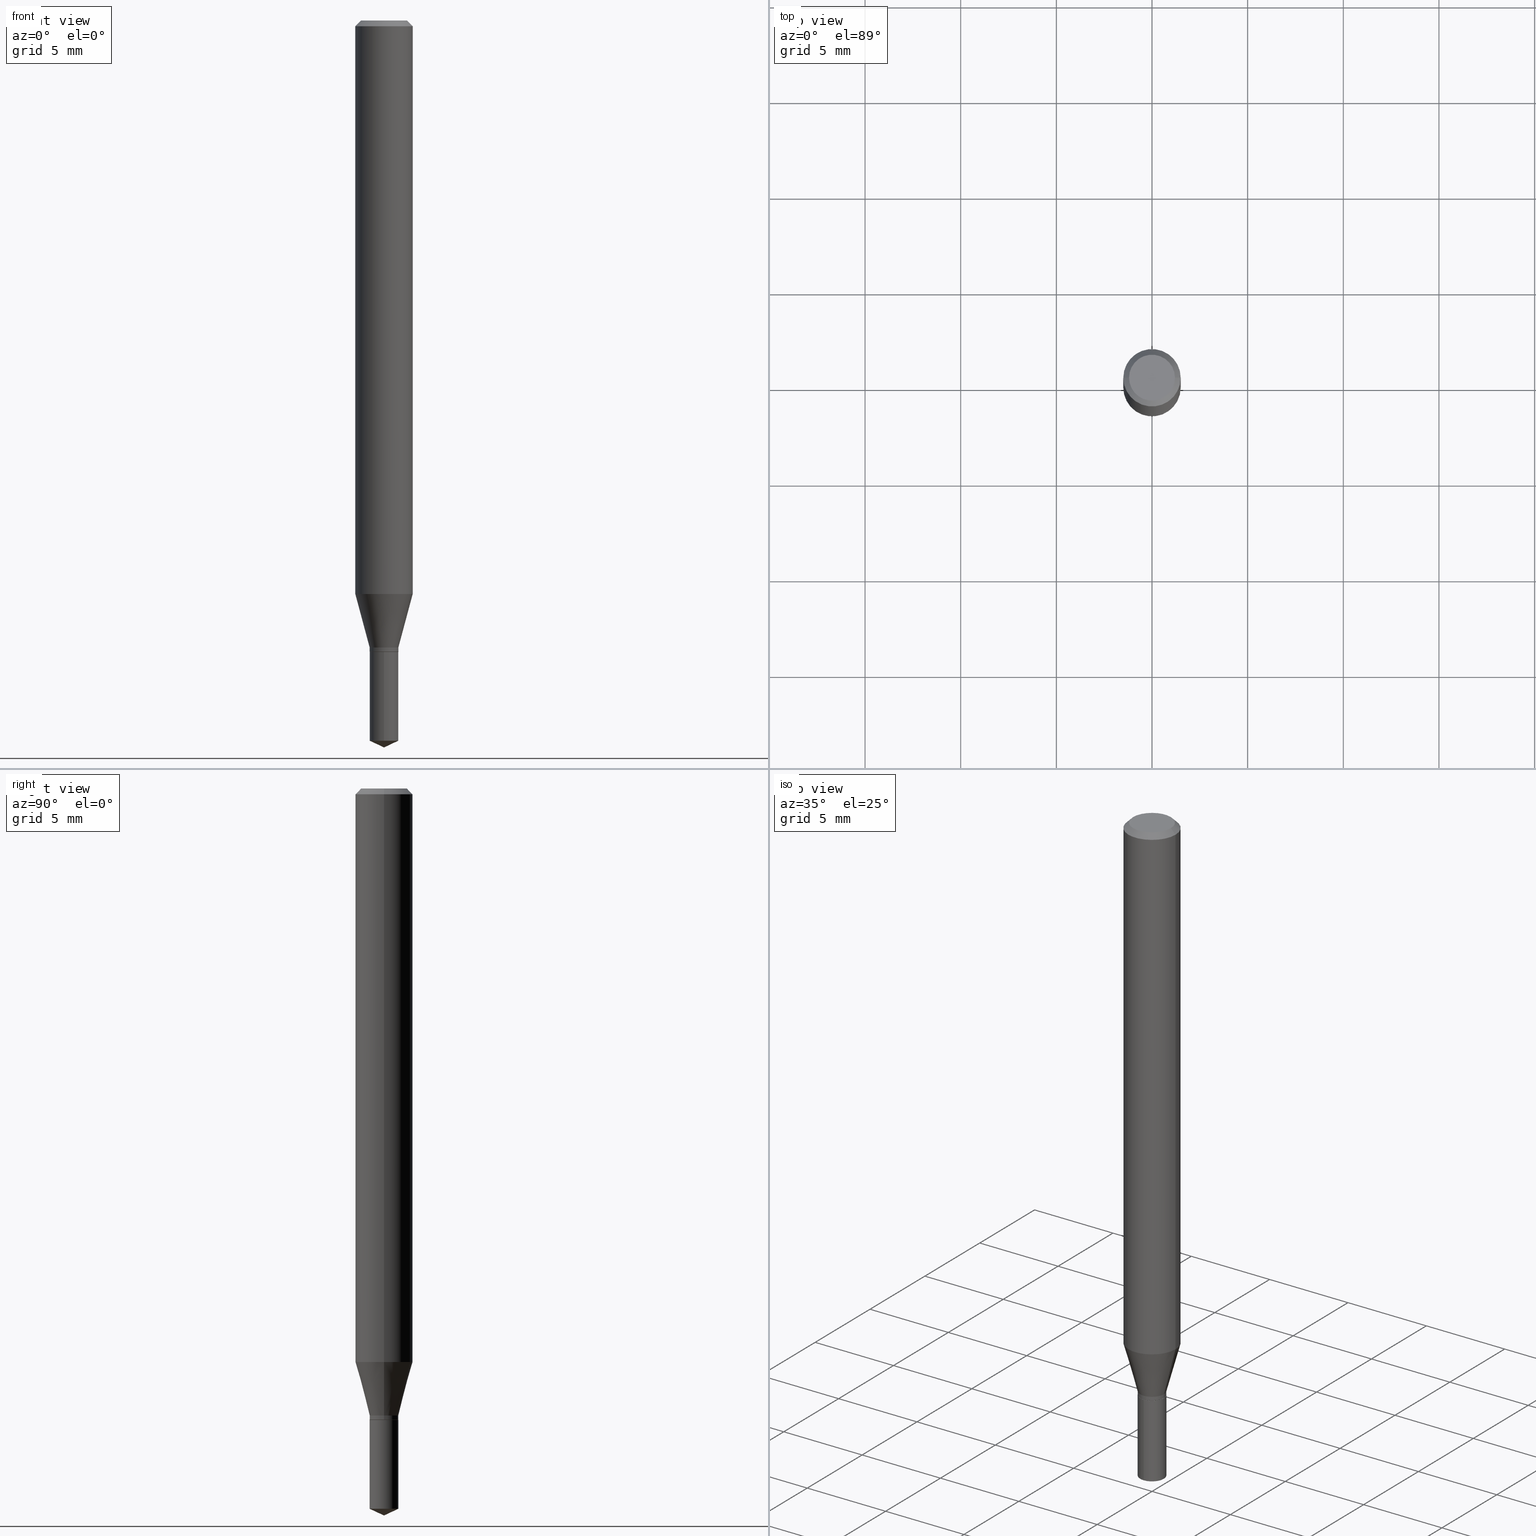
[diagram: canonical four-view strip — front | top / right | iso, engineering-drawing reading convention]
A machine part, canonical four-view strip (front | top / right | iso — engineering-drawing reading convention). The complete STEP part file that produces these views, byte-faithful:
ISO-10303-21;
HEADER;
FILE_DESCRIPTION (( 'STEP AP203' ),
    '1' );
FILE_NAME ('07061.STEP',
    '2024-04-23T19:29:27',
    ( '' ),
    ( '' ),
    'SwSTEP 2.0',
    'SolidWorks 2023',
    '' );
FILE_SCHEMA (( 'CONFIG_CONTROL_DESIGN' ));
ENDSEC;

DATA;
#1 = PLANE ( 'NONE',  #448 ) ;
#2 = EDGE_LOOP ( 'NONE', ( #396, #213, #97, #295 ) ) ;
#3 = PRODUCT_DEFINITION ( 'UNKNOWN', '', #259, #34 ) ;
#4 = CIRCLE ( 'NONE', #207, 0.02904999999999999943 ) ;
#5 = DIRECTION ( 'NONE',  ( -6.982962677686265922E-15, -1.000000000000000000, 0.000000000000000000 ) ) ;
#6 = ORIENTED_EDGE ( 'NONE', *, *, #206, .F. ) ;
#7 = CARTESIAN_POINT ( 'NONE',  ( 2.099653784171458177E-16, 0.02954999999999482346, -1.482320608701519937 ) ) ;
#8 = EDGE_CURVE ( 'NONE', #100, #326, #79, .T. ) ;
#9 = DIRECTION ( 'NONE',  ( -2.445468806185136597E-29, 3.491481338843145583E-15, 1.000000000000000000 ) ) ;
#10 = CARTESIAN_POINT ( 'NONE',  ( 3.177153072995728197E-29, -4.536132555425013945E-15, -1.299199999999999688 ) ) ;
#11 = VECTOR ( 'NONE', #134, 39.37007874015748854 ) ;
#12 = PRODUCT_RELATED_PRODUCT_CATEGORY ( 'detail', '', ( #38 ) ) ;
#13 = CIRCLE ( 'NONE', #93, 0.05905000000000014404 ) ;
#14 = CARTESIAN_POINT ( 'NONE',  ( -0.05905000000000006771, 4.195754854663396409E-16, -2.904631170795525045E-30 ) ) ;
#15 = CARTESIAN_POINT ( 'NONE',  ( 3.177153072995728757E-29, -4.536132555425014733E-15, -1.299199999999999910 ) ) ;
#16 = CARTESIAN_POINT ( 'NONE',  ( -0.05905000000000014404, -3.701086506410853465E-15, -1.180204501176717713 ) ) ;
#17 = DIRECTION ( 'NONE',  ( 1.000000000000000000, -6.982962677686265922E-15, 4.876176775795935793E-29 ) ) ;
#18 = ORIENTED_EDGE ( 'NONE', *, *, #254, .F. ) ;
#19 = CYLINDRICAL_SURFACE ( 'NONE', #335, 0.02954999999999999641 ) ;
#20 = VECTOR ( 'NONE', #342, 39.37007874015747433 ) ;
#21 = CIRCLE ( 'NONE', #309, 0.02954999999999999988 ) ;
#22 = DIRECTION ( 'NONE',  ( -2.445468806185136877E-29, 3.491481338843145188E-15, 1.000000000000000000 ) ) ;
#23 = ORIENTED_EDGE ( 'NONE', *, *, #225, .F. ) ;
#24 = DIRECTION ( 'NONE',  ( 1.000000000000000000, -6.982962677686265922E-15, 0.000000000000000000 ) ) ;
#25 = LINE ( 'NONE', #201, #11 ) ;
#26 = EDGE_LOOP ( 'NONE', ( #489, #174, #343 ) ) ;
#27 =( NAMED_UNIT ( * ) PLANE_ANGLE_UNIT ( ) SI_UNIT ( $, .RADIAN. ) );
#28 = ADVANCED_FACE ( 'NONE', ( #88 ), #333, .T. ) ;
#29 = EDGE_LOOP ( 'NONE', ( #222, #379, #58, #161 ) ) ;
#30 = COORDINATED_UNIVERSAL_TIME_OFFSET ( 5, 0, .BEHIND. ) ;
#31 = COORDINATED_UNIVERSAL_TIME_OFFSET ( 5, 0, .BEHIND. ) ;
#32 = PERSON_AND_ORGANIZATION_ROLE ( 'design_owner' ) ;
#33 = CC_DESIGN_PERSON_AND_ORGANIZATION_ASSIGNMENT ( #257, #488, ( #259 ) ) ;
#34 = DESIGN_CONTEXT ( 'detailed design', #120, 'design' ) ;
#35 = APPROVAL_DATE_TIME ( #75, #409 ) ;
#36 = DATE_AND_TIME ( #156, #52 ) ;
#37 = ORIENTED_EDGE ( 'NONE', *, *, #182, .F. ) ;
#38 = PRODUCT ( '07061', '07061', '', ( #439 ) ) ;
#39 = ADVANCED_FACE ( 'NONE', ( #459 ), #49, .T. ) ;
#40 = CARTESIAN_POINT ( 'NONE',  ( -0.05904999999999999832, 3.711095515056362547E-16, -0.01181000000000007218 ) ) ;
#41 = CARTESIAN_POINT ( 'NONE',  ( 0.02954999999999998253, -4.740733361881222840E-15, -1.298699999999999966 ) ) ;
#42 = DIRECTION ( 'NONE',  ( 2.438088387897960049E-29, -3.491481338843145188E-15, -1.000000000000000000 ) ) ;
#43 = LINE ( 'NONE', #191, #327 ) ;
#44 = AXIS2_PLACEMENT_3D ( 'NONE', #133, #358, #203 ) ;
#45 = CARTESIAN_POINT ( 'NONE',  ( 3.155388400620681599E-29, -4.505058371509310392E-15, -1.290300000000000002 ) ) ;
#46 = DIRECTION ( 'NONE',  ( -2.456664372604500601E-29, 3.475448650518548198E-15, 1.000000000000000000 ) ) ;
#47 = APPROVAL ( #143, 'UNSPECIFIED' ) ;
#48 = FACE_OUTER_BOUND ( 'NONE', #419, .T. ) ;
#49 = CYLINDRICAL_SURFACE ( 'NONE', #92, 0.05905000000000006771 ) ;
#50 = DIRECTION ( 'NONE',  ( 6.982962677686265922E-15, 1.000000000000000000, -3.475448650518548198E-15 ) ) ;
#51 = VERTEX_POINT ( 'NONE', #41 ) ;
#52 = LOCAL_TIME ( 15, 29, 27.00000000000000000, #366 ) ;
#53 = DIRECTION ( 'NONE',  ( -6.982962677686267499E-15, -1.000000000000000000, 3.520397390770424288E-15 ) ) ;
#54 = ORIENTED_EDGE ( 'NONE', *, *, #263, .F. ) ;
#55 = DIRECTION ( 'NONE',  ( -2.445468806185136597E-29, 3.491481338843145583E-15, 1.000000000000000000 ) ) ;
#56 = ADVANCED_FACE ( 'NONE', ( #226 ), #224, .T. ) ;
#57 = CARTESIAN_POINT ( 'NONE',  ( 3.177153072995728197E-29, -4.536132555425013945E-15, -1.299199999999999688 ) ) ;
#58 = ORIENTED_EDGE ( 'NONE', *, *, #103, .T. ) ;
#59 = DIRECTION ( 'NONE',  ( -6.328713451373382789E-15, -0.9063077870366504918, 0.4226182617406981090 ) ) ;
#60 = CARTESIAN_POINT ( 'NONE',  ( -0.02954999999999998253, -4.309757214715342453E-15, -1.298699999999999966 ) ) ;
#61 = ORIENTED_EDGE ( 'NONE', *, *, #293, .F. ) ;
#62 =( LENGTH_UNIT ( ) NAMED_UNIT ( * ) SI_UNIT ( $, .METRE. ) );
#63 = AXIS2_PLACEMENT_3D ( 'NONE', #312, #139, #467 ) ;
#64 = DIRECTION ( 'NONE',  ( -2.445468806185136597E-29, 3.491481338843145583E-15, 1.000000000000000000 ) ) ;
#65 = EDGE_CURVE ( 'NONE', #51, #114, #43, .T. ) ;
#66 = PERSON_AND_ORGANIZATION ( #199, #124 ) ;
#67 = DIRECTION ( 'NONE',  ( -2.456664372604500881E-29, 3.475448650518548198E-15, 1.000000000000000000 ) ) ;
#68 = EDGE_LOOP ( 'NONE', ( #305, #423, #432 ) ) ;
#69 = PERSON_AND_ORGANIZATION ( #199, #124 ) ;
#70 = VECTOR ( 'NONE', #283, 39.37007874015748854 ) ;
#71 = VECTOR ( 'NONE', #397, 39.37007874015748143 ) ;
#72 = CALENDAR_DATE ( 2024, 23, 4 ) ;
#73 = EDGE_CURVE ( 'NONE', #266, #270, #4, .T. ) ;
#74 = EDGE_LOOP ( 'NONE', ( #264, #261, #300, #54 ) ) ;
#75 = DATE_AND_TIME ( #443, #416 ) ;
#76 = CARTESIAN_POINT ( 'NONE',  ( -0.02904999999999999943, -4.327070663512594284E-15, -1.299199999999999688 ) ) ;
#77 = CIRCLE ( 'NONE', #275, 0.04724000000000000421 ) ;
#78 = ADVANCED_FACE ( 'NONE', ( #83 ), #229, .T. ) ;
#79 = LINE ( 'NONE', #231, #487 ) ;
#80 = PLANE ( 'NONE',  #350 ) ;
#81 = DIRECTION ( 'NONE',  ( -2.445468806185136877E-29, 3.491481338843145188E-15, 1.000000000000000000 ) ) ;
#82 = EDGE_CURVE ( 'NONE', #266, #170, #344, .T. ) ;
#83 = FACE_OUTER_BOUND ( 'NONE', #2, .T. ) ;
#84 = CIRCLE ( 'NONE', #107, 0.02904999999999999943 ) ;
#85 = CARTESIAN_POINT ( 'NONE',  ( 2.886153292546952505E-29, -4.120661991877192958E-15, -1.180204501176717713 ) ) ;
#86 = VERTEX_POINT ( 'NONE', #7 ) ;
#87 = FACE_OUTER_BOUND ( 'NONE', #380, .T. ) ;
#88 = FACE_OUTER_BOUND ( 'NONE', #29, .T. ) ;
#89 = DIRECTION ( 'NONE',  ( -2.445468806185136597E-29, 3.491481338843145583E-15, 1.000000000000000000 ) ) ;
#90 = LINE ( 'NONE', #402, #106 ) ;
#91 = DIMENSIONAL_EXPONENTS ( 1.000000000000000000, 0.000000000000000000, 0.000000000000000000, 0.000000000000000000, 0.000000000000000000, 0.000000000000000000, 0.000000000000000000 ) ;
#92 = AXIS2_PLACEMENT_3D ( 'NONE', #157, #303, #298 ) ;
#93 = AXIS2_PLACEMENT_3D ( 'NONE', #297, #269, #452 ) ;
#94 = DIRECTION ( 'NONE',  ( 1.000000000000000000, -6.982962677686265922E-15, 0.000000000000000000 ) ) ;
#95 = CARTESIAN_POINT ( 'NONE',  ( 2.888098660104664204E-31, -4.123439461173780263E-17, -0.01181000000000007218 ) ) ;
#96 = APPLICATION_CONTEXT ( 'configuration controlled 3d designs of mechanical parts and assemblies' ) ;
#97 = ORIENTED_EDGE ( 'NONE', *, *, #337, .F. ) ;
#98 = DIRECTION ( 'NONE',  ( -2.445468806185136597E-29, 3.491481338843145583E-15, 1.000000000000000000 ) ) ;
#99 = CARTESIAN_POINT ( 'NONE',  ( 0.000000000000000000, 0.000000000000000000, 0.000000000000000000 ) ) ;
#100 = VERTEX_POINT ( 'NONE', #159 ) ;
#101 = CARTESIAN_POINT ( 'NONE',  ( 3.155388400620681599E-29, -4.505058371509310392E-15, -1.290300000000000002 ) ) ;
#102 = DIRECTION ( 'NONE',  ( -2.456664372604500601E-29, 3.475448650518548198E-15, 1.000000000000000000 ) ) ;
#103 = EDGE_CURVE ( 'NONE', #326, #238, #307, .T. ) ;
#104 = EDGE_LOOP ( 'NONE', ( #367, #473, #425, #186 ) ) ;
#105 = PERSON_AND_ORGANIZATION ( #199, #124 ) ;
#106 = VECTOR ( 'NONE', #349, 39.37007874015748143 ) ;
#107 = AXIS2_PLACEMENT_3D ( 'NONE', #165, #475, #363 ) ;
#108 = CARTESIAN_POINT ( 'NONE',  ( 2.099653784171458424E-16, 0.02954999999999545837, -1.299199999999999910 ) ) ;
#109 = ORIENTED_EDGE ( 'NONE', *, *, #426, .T. ) ;
#110 = LENGTH_MEASURE_WITH_UNIT ( LENGTH_MEASURE( 0.02539999999999999897 ), #62 );
#111 = DATE_TIME_ROLE ( 'creation_date' ) ;
#112 = ADVANCED_FACE ( 'NONE', ( #128 ), #461, .T. ) ;
#113 = CIRCLE ( 'NONE', #171, 0.05905000000000014404 ) ;
#114 = VERTEX_POINT ( 'NONE', #272 ) ;
#115 = EDGE_CURVE ( 'NONE', #412, #86, #25, .T. ) ;
#116 = ORIENTED_EDGE ( 'NONE', *, *, #8, .F. ) ;
#117 = AXIS2_PLACEMENT_3D ( 'NONE', #435, #240, #394 ) ;
#118 = DIRECTION ( 'NONE',  ( -2.445468806185136597E-29, 3.491481338843145583E-15, 1.000000000000000000 ) ) ;
#119 = CARTESIAN_POINT ( 'NONE',  ( 0.000000000000000000, 0.000000000000000000, 0.000000000000000000 ) ) ;
#120 = APPLICATION_CONTEXT ( 'configuration controlled 3d designs of mechanical parts and assemblies' ) ;
#121 = DIRECTION ( 'NONE',  ( -2.445468806185136877E-29, 3.491481338843145188E-15, 1.000000000000000000 ) ) ;
#122 = CC_DESIGN_DATE_AND_TIME_ASSIGNMENT ( #329, #111, ( #3 ) ) ;
#123 = CARTESIAN_POINT ( 'NONE',  ( -0.02904999999999999943, -4.329719890686704697E-15, -1.299199999999999688 ) ) ;
#124 = ORGANIZATION ( 'UNSPECIFIED', 'UNSPECIFIED', '' ) ;
#125 = LINE ( 'NONE', #40, #132 ) ;
#126 = ORIENTED_EDGE ( 'NONE', *, *, #82, .T. ) ;
#127 = CARTESIAN_POINT ( 'NONE',  ( 2.099653784171413311E-16, 0.02954999999999545837, -1.299199999999999910 ) ) ;
#128 = FACE_OUTER_BOUND ( 'NONE', #276, .T. ) ;
#129 = EDGE_CURVE ( 'NONE', #238, #326, #470, .T. ) ;
#130 = DIRECTION ( 'NONE',  ( 1.000000000000000000, -6.982962677686277755E-15, 0.000000000000000000 ) ) ;
#131 = VECTOR ( 'NONE', #67, 39.37007874015748143 ) ;
#132 = VECTOR ( 'NONE', #376, 39.37007874015748143 ) ;
#133 = CARTESIAN_POINT ( 'NONE',  ( 3.155388400620681599E-29, -4.505058371509310392E-15, -1.290300000000000002 ) ) ;
#134 = DIRECTION ( 'NONE',  ( 6.439704144417038242E-15, 0.9063077870366533784, 0.4226182617406917807 ) ) ;
#135 = VERTEX_POINT ( 'NONE', #175 ) ;
#136 = CARTESIAN_POINT ( 'NONE',  ( 8.265746106709734507E-48, -1.180129479067563789E-33, -3.380025165646692144E-19 ) ) ;
#137 = EDGE_CURVE ( 'NONE', #267, #326, #90, .T. ) ;
#138 = CARTESIAN_POINT ( 'NONE',  ( 8.265746106709734507E-48, -1.180129479067563789E-33, -3.380025165646692144E-19 ) ) ;
#139 = DIRECTION ( 'NONE',  ( 2.445468806185136597E-29, -3.491481338843145583E-15, -1.000000000000000000 ) ) ;
#140 = CARTESIAN_POINT ( 'NONE',  ( 2.888098660104664204E-31, -4.123439461173780263E-17, -0.01181000000000007218 ) ) ;
#141 = APPLICATION_PROTOCOL_DEFINITION ( 'international standard', 'config_control_design', 1994, #96 ) ;
#142 = CIRCLE ( 'NONE', #415, 0.02954999999999999641 ) ;
#143 = APPROVAL_STATUS ( 'not_yet_approved' ) ;
#144 = ADVANCED_FACE ( 'NONE', ( #395 ), #406, .F. ) ;
#145 = PERSON_AND_ORGANIZATION ( #199, #124 ) ;
#146 = AXIS2_PLACEMENT_3D ( 'NONE', #119, #460, #346 ) ;
#147 = AXIS2_PLACEMENT_3D ( 'NONE', #198, #282, #53 ) ;
#148 = APPROVAL_DATE_TIME ( #36, #345 ) ;
#149 = EDGE_CURVE ( 'NONE', #407, #86, #256, .T. ) ;
#150 = VERTEX_POINT ( 'NONE', #284 ) ;
#151 = ORIENTED_EDGE ( 'NONE', *, *, #323, .F. ) ;
#152 = CARTESIAN_POINT ( 'NONE',  ( 3.177153072995728757E-29, -4.536132555425014733E-15, -1.299199999999999910 ) ) ;
#153 = CIRCLE ( 'NONE', #287, 0.02954999999999998253 ) ;
#154 = DIRECTION ( 'NONE',  ( -1.000000000000000000, 6.982962677686266711E-15, 0.000000000000000000 ) ) ;
#155 = CONICAL_SURFACE ( 'NONE', #318, 0.02904999999999999943, 0.7853981633978068810 ) ;
#156 = CALENDAR_DATE ( 2024, 23, 4 ) ;
#157 = CARTESIAN_POINT ( 'NONE',  ( 0.000000000000000000, 0.000000000000000000, 0.000000000000000000 ) ) ;
#158 = ADVANCED_FACE ( 'NONE', ( #169 ), #430, .T. ) ;
#159 = CARTESIAN_POINT ( 'NONE',  ( 0.05905000000000014404, -4.533005937994568667E-15, -1.180204501176717713 ) ) ;
#160 = CARTESIAN_POINT ( 'NONE',  ( 3.177153072995728757E-29, -4.536132555425014733E-15, -1.299199999999999910 ) ) ;
#161 = ORIENTED_EDGE ( 'NONE', *, *, #304, .F. ) ;
#162 = AXIS2_PLACEMENT_3D ( 'NONE', #356, #324, #313 ) ;
#163 = LINE ( 'NONE', #127, #71 ) ;
#164 = DIRECTION ( 'NONE',  ( 1.000000000000000000, -6.982962677686266711E-15, 0.000000000000000000 ) ) ;
#165 = CARTESIAN_POINT ( 'NONE',  ( 3.177153072995728197E-29, -4.536132555425013945E-15, -1.299199999999999688 ) ) ;
#166 = DIRECTION ( 'NONE',  ( -2.438088387897960049E-29, 3.491481338843145188E-15, 1.000000000000000000 ) ) ;
#167 = ORIENTED_EDGE ( 'NONE', *, *, #449, .T. ) ;
#168 = CARTESIAN_POINT ( 'NONE',  ( 3.646325008069517362E-29, -5.241278063383433293E-15, -1.496099999999999985 ) ) ;
#169 = FACE_OUTER_BOUND ( 'NONE', #68, .T. ) ;
#170 = VERTEX_POINT ( 'NONE', #60 ) ;
#171 = AXIS2_PLACEMENT_3D ( 'NONE', #85, #9, #458 ) ;
#172 = DIRECTION ( 'NONE',  ( 2.456664372604500321E-29, -3.475448650518548198E-15, -1.000000000000000000 ) ) ;
#173 = DIRECTION ( 'NONE',  ( -6.982962677686267499E-15, -1.000000000000000000, 3.520397390770424288E-15 ) ) ;
#174 = ORIENTED_EDGE ( 'NONE', *, *, #115, .T. ) ;
#175 = CARTESIAN_POINT ( 'NONE',  ( -0.02954999999999998253, -4.309757214715342453E-15, -1.290300000000000002 ) ) ;
#176 = ORIENTED_EDGE ( 'NONE', *, *, #243, .T. ) ;
#177 = CLOSED_SHELL ( 'NONE', ( #420, #28, #485, #278, #188, #56, #464, #39, #389, #299, #144, #112 ) ) ;
#178 = CALENDAR_DATE ( 2024, 23, 4 ) ;
#179 = CC_DESIGN_APPROVAL ( #47, ( #259 ) ) ;
#180 = DATE_AND_TIME ( #291, #455 ) ;
#181 = APPROVAL_ROLE ( '' ) ;
#182 = EDGE_CURVE ( 'NONE', #135, #114, #153, .T. ) ;
#183 = PERSON_AND_ORGANIZATION_ROLE ( 'creator' ) ;
#184 = VECTOR ( 'NONE', #242, 39.37007874015748143 ) ;
#185 = CARTESIAN_POINT ( 'NONE',  ( 0.05904999999999999832, -4.535783407291118600E-16, -0.01181000000000007218 ) ) ;
#186 = ORIENTED_EDGE ( 'NONE', *, *, #129, .F. ) ;
#187 = ORIENTED_EDGE ( 'NONE', *, *, #457, .T. ) ;
#188 = ADVANCED_FACE ( 'NONE', ( #280 ), #433, .T. ) ;
#189 = CIRCLE ( 'NONE', #471, 0.04724000000000000421 ) ;
#190 = DIRECTION ( 'NONE',  ( 1.000000000000000000, -6.982962677686265922E-15, 0.000000000000000000 ) ) ;
#191 = CARTESIAN_POINT ( 'NONE',  ( 0.02954999999999998253, -2.063465471256290681E-16, 1.440910237247698194E-30 ) ) ;
#192 = LINE ( 'NONE', #220, #20 ) ;
#193 = ORIENTED_EDGE ( 'NONE', *, *, #449, .F. ) ;
#194 = EDGE_CURVE ( 'NONE', #386, #267, #77, .T. ) ;
#195 = FACE_OUTER_BOUND ( 'NONE', #26, .T. ) ;
#196 = VERTEX_POINT ( 'NONE', #108 ) ;
#197 = LOCAL_TIME ( 15, 29, 27.00000000000000000, #405 ) ;
#198 = CARTESIAN_POINT ( 'NONE',  ( -9.305819949961722198E-28, 1.316082386335771911E-13, 37.87397874015748300 ) ) ;
#199 = PERSON ( 'UNSPECIFIED', 'UNSPECIFIED', 'UNSPECIFIED', ('UNSPECIFIED'), ('UNSPECIFIED'), ('UNSPECIFIED') ) ;
#200 = FACE_OUTER_BOUND ( 'NONE', #400, .T. ) ;
#201 = CARTESIAN_POINT ( 'NONE',  ( 3.675670657724248735E-29, -5.199618726040799515E-15, -1.496099999999999985 ) ) ;
#202 = ORIENTED_EDGE ( 'NONE', *, *, #225, .T. ) ;
#203 = DIRECTION ( 'NONE',  ( 1.000000000000000000, -6.982962677686265922E-15, 0.000000000000000000 ) ) ;
#204 = DIRECTION ( 'NONE',  ( -2.445468806185136597E-29, 3.491481338843145583E-15, 1.000000000000000000 ) ) ;
#205 = ORIENTED_EDGE ( 'NONE', *, *, #82, .F. ) ;
#206 = EDGE_CURVE ( 'NONE', #170, #135, #398, .T. ) ;
#207 = AXIS2_PLACEMENT_3D ( 'NONE', #10, #465, #421 ) ;
#208 =( GEOMETRIC_REPRESENTATION_CONTEXT ( 3 ) GLOBAL_UNCERTAINTY_ASSIGNED_CONTEXT ( ( #262 ) ) GLOBAL_UNIT_ASSIGNED_CONTEXT ( ( #251, #27, #255 ) ) REPRESENTATION_CONTEXT ( 'NONE', 'WORKASPACE' ) );
#209 = DIRECTION ( 'NONE',  ( -6.982962677686265922E-15, -1.000000000000000000, 0.000000000000000000 ) ) ;
#210 = CARTESIAN_POINT ( 'NONE',  ( -0.05904999999999999832, -1.661372707778124864E-15, -0.01181000000000007218 ) ) ;
#211 = DATE_TIME_ROLE ( 'classification_date' ) ;
#212 = CC_DESIGN_PERSON_AND_ORGANIZATION_ASSIGNMENT ( #66, #32, ( #38 ) ) ;
#213 = ORIENTED_EDGE ( 'NONE', *, *, #436, .T. ) ;
#214 = SECURITY_CLASSIFICATION_LEVEL ( 'unclassified' ) ;
#215 = AXIS2_PLACEMENT_3D ( 'NONE', #160, #306, #5 ) ;
#216 = APPROVAL_DATE_TIME ( #218, #47 ) ;
#217 = CC_DESIGN_PERSON_AND_ORGANIZATION_ASSIGNMENT ( #145, #183, ( #3 ) ) ;
#218 = DATE_AND_TIME ( #72, #482 ) ;
#219 = AXIS2_PLACEMENT_3D ( 'NONE', #383, #46, #234 ) ;
#220 = CARTESIAN_POINT ( 'NONE',  ( -0.02954999999999998253, -4.295092993092201035E-15, -1.290300000000000002 ) ) ;
#221 = AXIS2_PLACEMENT_3D ( 'NONE', #315, #98, #279 ) ;
#222 = ORIENTED_EDGE ( 'NONE', *, *, #414, .F. ) ;
#223 = CARTESIAN_POINT ( 'NONE',  ( 0.02954999999999998253, -4.711404918634939214E-15, -1.290300000000000002 ) ) ;
#224 = CYLINDRICAL_SURFACE ( 'NONE', #146, 0.02954999999999998253 ) ;
#225 = EDGE_CURVE ( 'NONE', #270, #51, #440, .T. ) ;
#226 = FACE_OUTER_BOUND ( 'NONE', #438, .T. ) ;
#227 = SHAPE_DEFINITION_REPRESENTATION ( #378, #301 ) ;
#228 = VECTOR ( 'NONE', #302, 39.37007874015747433 ) ;
#229 = CYLINDRICAL_SURFACE ( 'NONE', #219, 0.02954999999999999641 ) ;
#230 = CARTESIAN_POINT ( 'NONE',  ( 0.04724000000000000421, -3.852183633974369345E-16, -3.380025165621689721E-19 ) ) ;
#231 = CARTESIAN_POINT ( 'NONE',  ( 0.05905000000000006771, -4.123439461173745257E-16, 2.879382386107503723E-30 ) ) ;
#232 = EDGE_CURVE ( 'NONE', #86, #407, #142, .T. ) ;
#233 = FACE_OUTER_BOUND ( 'NONE', #74, .T. ) ;
#234 = DIRECTION ( 'NONE',  ( -6.982962677686265922E-15, -1.000000000000000000, 0.000000000000000000 ) ) ;
#235 = DIRECTION ( 'NONE',  ( -2.445468806185136597E-29, 3.491481338843145583E-15, 1.000000000000000000 ) ) ;
#236 = DIRECTION ( 'NONE',  ( -2.445468806185136597E-29, 3.491481338843145583E-15, 1.000000000000000000 ) ) ;
#237 = VECTOR ( 'NONE', #388, 39.37007874015748854 ) ;
#238 = VERTEX_POINT ( 'NONE', #210 ) ;
#239 = APPROVAL_PERSON_ORGANIZATION ( #334, #47, #411 ) ;
#240 = DIRECTION ( 'NONE',  ( -2.445468806185136597E-29, 3.491481338843145583E-15, 1.000000000000000000 ) ) ;
#241 = DIRECTION ( 'NONE',  ( -2.445468806185136597E-29, 3.491481338843145583E-15, 1.000000000000000000 ) ) ;
#242 = DIRECTION ( 'NONE',  ( -2.445468806185136877E-29, 3.491481338843145188E-15, 1.000000000000000000 ) ) ;
#243 = EDGE_CURVE ( 'NONE', #407, #150, #364, .T. ) ;
#244 = DIRECTION ( 'NONE',  ( 1.000000000000000000, -6.982962677686266711E-15, 4.876176775795935793E-29 ) ) ;
#245 = ORIENTED_EDGE ( 'NONE', *, *, #194, .T. ) ;
#246 = DIRECTION ( 'NONE',  ( -2.456664372604500601E-29, 3.475448650518548198E-15, 1.000000000000000000 ) ) ;
#247 = DIRECTION ( 'NONE',  ( -6.982962677686265922E-15, -1.000000000000000000, 0.000000000000000000 ) ) ;
#248 = EDGE_LOOP ( 'NONE', ( #336, #450, #176, #61 ) ) ;
#249 = AXIS2_PLACEMENT_3D ( 'NONE', #140, #241, #428 ) ;
#250 = CIRCLE ( 'NONE', #215, 0.02954999999999999988 ) ;
#251 =( CONVERSION_BASED_UNIT ( 'INCH', #110 ) LENGTH_UNIT ( ) NAMED_UNIT ( #91 ) );
#252 = CARTESIAN_POINT ( 'NONE',  ( -2.063465471255973657E-16, -0.02955000000000453445, -1.299199999999999910 ) ) ;
#253 = ORIENTED_EDGE ( 'NONE', *, *, #73, .T. ) ;
#254 = EDGE_CURVE ( 'NONE', #114, #100, #382, .T. ) ;
#255 =( NAMED_UNIT ( * ) SI_UNIT ( $, .STERADIAN. ) SOLID_ANGLE_UNIT ( ) );
#256 = CIRCLE ( 'NONE', #162, 0.02954999999999999641 ) ;
#257 = PERSON_AND_ORGANIZATION ( #199, #124 ) ;
#258 = ORIENTED_EDGE ( 'NONE', *, *, #426, .F. ) ;
#259 = PRODUCT_DEFINITION_FORMATION_WITH_SPECIFIED_SOURCE ( 'ANY', '', #38, .NOT_KNOWN. ) ;
#260 = APPROVAL_PERSON_ORGANIZATION ( #486, #409, #483 ) ;
#261 = ORIENTED_EDGE ( 'NONE', *, *, #182, .T. ) ;
#262 = UNCERTAINTY_MEASURE_WITH_UNIT (LENGTH_MEASURE( 1.000000000000000082E-05 ), #251, 'distance_accuracy_value', 'NONE');
#263 = EDGE_CURVE ( 'NONE', #434, #100, #113, .T. ) ;
#264 = ORIENTED_EDGE ( 'NONE', *, *, #285, .F. ) ;
#265 = CC_DESIGN_DATE_AND_TIME_ASSIGNMENT ( #180, #211, ( #277 ) ) ;
#266 = VERTEX_POINT ( 'NONE', #76 ) ;
#267 = VERTEX_POINT ( 'NONE', #230 ) ;
#268 = AXIS2_PLACEMENT_3D ( 'NONE', #444, #289, #408 ) ;
#269 = DIRECTION ( 'NONE',  ( -2.445468806185136597E-29, 3.491481338843145583E-15, 1.000000000000000000 ) ) ;
#270 = VERTEX_POINT ( 'NONE', #385 ) ;
#271 = FACE_OUTER_BOUND ( 'NONE', #248, .T. ) ;
#272 = CARTESIAN_POINT ( 'NONE',  ( 0.02954999999999998253, -4.711404918634939214E-15, -1.290300000000000002 ) ) ;
#273 = CARTESIAN_POINT ( 'NONE',  ( 3.177153072995728197E-29, -4.536132555425013945E-15, -1.299199999999999688 ) ) ;
#274 = DIRECTION ( 'NONE',  ( 1.000000000000000000, -6.982962677686277755E-15, 0.000000000000000000 ) ) ;
#275 = AXIS2_PLACEMENT_3D ( 'NONE', #138, #359, #311 ) ;
#276 = EDGE_LOOP ( 'NONE', ( #205, #253, #202, #368 ) ) ;
#277 = SECURITY_CLASSIFICATION ( '', '', #214 ) ;
#278 = ADVANCED_FACE ( 'NONE', ( #48 ), #404, .T. ) ;
#279 = DIRECTION ( 'NONE',  ( 1.000000000000000000, -6.982962677686266711E-15, 4.876176775795936353E-29 ) ) ;
#280 = FACE_OUTER_BOUND ( 'NONE', #292, .T. ) ;
#281 = ORIENTED_EDGE ( 'NONE', *, *, #65, .T. ) ;
#282 = DIRECTION ( 'NONE',  ( -2.456664372604500601E-29, 3.475448650518548198E-15, 1.000000000000000000 ) ) ;
#283 = DIRECTION ( 'NONE',  ( 0.7071067811868009256, -2.468850131084911578E-15, 0.7071067811862938868 ) ) ;
#284 = CARTESIAN_POINT ( 'NONE',  ( -2.063465471255973904E-16, -0.02955000000000453791, -1.299199999999999910 ) ) ;
#285 = EDGE_CURVE ( 'NONE', #135, #434, #192, .T. ) ;
#286 = EDGE_LOOP ( 'NONE', ( #245, #308 ) ) ;
#287 = AXIS2_PLACEMENT_3D ( 'NONE', #316, #64, #472 ) ;
#288 = CIRCLE ( 'NONE', #370, 0.02954999999999998253 ) ;
#289 = DIRECTION ( 'NONE',  ( 0.000000000000000000, 0.000000000000000000, 1.000000000000000000 ) ) ;
#290 = APPROVAL_STATUS ( 'not_yet_approved' ) ;
#291 = CALENDAR_DATE ( 2024, 23, 4 ) ;
#292 = EDGE_LOOP ( 'NONE', ( #109, #478, #193, #339 ) ) ;
#293 = EDGE_CURVE ( 'NONE', #196, #150, #250, .T. ) ;
#294 = AXIS2_PLACEMENT_3D ( 'NONE', #45, #118, #190 ) ;
#295 = ORIENTED_EDGE ( 'NONE', *, *, #243, .F. ) ;
#296 = ORIENTED_EDGE ( 'NONE', *, *, #129, .T. ) ;
#297 = CARTESIAN_POINT ( 'NONE',  ( 2.886153292546952505E-29, -4.120661991877192958E-15, -1.180204501176717713 ) ) ;
#298 = DIRECTION ( 'NONE',  ( 1.000000000000000000, -6.982962677686266711E-15, 4.876176775795936353E-29 ) ) ;
#299 = ADVANCED_FACE ( 'NONE', ( #418 ), #80, .F. ) ;
#300 = ORIENTED_EDGE ( 'NONE', *, *, #254, .T. ) ;
#301 = ADVANCED_BREP_SHAPE_REPRESENTATION ( '07061', ( #320, #325, #268 ), #208 ) ;
#302 = DIRECTION ( 'NONE',  ( 0.2588190451025214611, 1.565188264969621573E-15, 0.9659258262890682012 ) ) ;
#303 = DIRECTION ( 'NONE',  ( -2.445468806185136597E-29, 3.491481338843145583E-15, 1.000000000000000000 ) ) ;
#304 = EDGE_CURVE ( 'NONE', #386, #238, #125, .T. ) ;
#305 = ORIENTED_EDGE ( 'NONE', *, *, #115, .F. ) ;
#306 = DIRECTION ( 'NONE',  ( -2.456664372604500601E-29, 3.475448650518548198E-15, 1.000000000000000000 ) ) ;
#307 = CIRCLE ( 'NONE', #369, 0.05904999999999999832 ) ;
#308 = ORIENTED_EDGE ( 'NONE', *, *, #414, .T. ) ;
#309 = AXIS2_PLACEMENT_3D ( 'NONE', #15, #319, #209 ) ;
#310 = CARTESIAN_POINT ( 'NONE',  ( 3.675415567853592762E-29, -5.199618726040799515E-15, -1.496099999999999985 ) ) ;
#311 = DIRECTION ( 'NONE',  ( 1.000000000000000000, -6.982962677686266711E-15, 4.876185090822587894E-29 ) ) ;
#312 = CARTESIAN_POINT ( 'NONE',  ( 2.888098660104664204E-31, -4.123439461173780263E-17, -0.01181000000000007218 ) ) ;
#313 = DIRECTION ( 'NONE',  ( -6.982962677686265922E-15, -1.000000000000000000, 0.000000000000000000 ) ) ;
#314 = CC_DESIGN_PERSON_AND_ORGANIZATION_ASSIGNMENT ( #69, #372, ( #259 ) ) ;
#315 = CARTESIAN_POINT ( 'NONE',  ( 0.000000000000000000, 0.000000000000000000, 0.000000000000000000 ) ) ;
#316 = CARTESIAN_POINT ( 'NONE',  ( 3.155388400620681599E-29, -4.505058371509310392E-15, -1.290300000000000002 ) ) ;
#317 = ORIENTED_EDGE ( 'NONE', *, *, #399, .T. ) ;
#318 = AXIS2_PLACEMENT_3D ( 'NONE', #273, #235, #130 ) ;
#319 = DIRECTION ( 'NONE',  ( -2.456664372604500601E-29, 3.475448650518548198E-15, 1.000000000000000000 ) ) ;
#320 = MANIFOLD_SOLID_BREP ( 'Body-Move/Copy2[1]', #360 ) ;
#321 = CARTESIAN_POINT ( 'NONE',  ( -0.02954999999999998253, 2.099653784171094808E-16, -1.453545319170323675E-30 ) ) ;
#322 = ORIENTED_EDGE ( 'NONE', *, *, #352, .F. ) ;
#323 = EDGE_CURVE ( 'NONE', #100, #434, #13, .T. ) ;
#324 = DIRECTION ( 'NONE',  ( -2.456664372604500601E-29, 3.475448650518548198E-15, 1.000000000000000000 ) ) ;
#325 = MANIFOLD_SOLID_BREP ( 'Body-Move/Copy2[2]', #177 ) ;
#326 = VERTEX_POINT ( 'NONE', #185 ) ;
#327 = VECTOR ( 'NONE', #121, 39.37007874015748143 ) ;
#328 = APPROVAL_PERSON_ORGANIZATION ( #331, #345, #181 ) ;
#329 = DATE_AND_TIME ( #178, #197 ) ;
#330 = ORIENTED_EDGE ( 'NONE', *, *, #323, .T. ) ;
#331 = PERSON_AND_ORGANIZATION ( #199, #124 ) ;
#332 = ADVANCED_FACE ( 'NONE', ( #338 ), #1, .F. ) ;
#333 = CONICAL_SURFACE ( 'NONE', #479, 0.05904999999999999832, 0.7853981633974452814 ) ;
#334 = PERSON_AND_ORGANIZATION ( #199, #124 ) ;
#335 = AXIS2_PLACEMENT_3D ( 'NONE', #427, #246, #401 ) ;
#336 = ORIENTED_EDGE ( 'NONE', *, *, #436, .F. ) ;
#337 = EDGE_CURVE ( 'NONE', #150, #196, #21, .T. ) ;
#338 = FACE_OUTER_BOUND ( 'NONE', #447, .T. ) ;
#339 = ORIENTED_EDGE ( 'NONE', *, *, #65, .F. ) ;
#340 = AXIS2_PLACEMENT_3D ( 'NONE', #99, #204, #244 ) ;
#341 = CC_DESIGN_APPROVAL ( #345, ( #277 ) ) ;
#342 = DIRECTION ( 'NONE',  ( -0.2588190451025214611, 5.211531920934551042E-15, 0.9659258262890682012 ) ) ;
#343 = ORIENTED_EDGE ( 'NONE', *, *, #149, .F. ) ;
#344 = LINE ( 'NONE', #123, #237 ) ;
#345 = APPROVAL ( #446, 'UNSPECIFIED' ) ;
#346 = DIRECTION ( 'NONE',  ( 1.000000000000000000, -6.982962677686266711E-15, 4.876176775795935793E-29 ) ) ;
#347 = CARTESIAN_POINT ( 'NONE',  ( 3.175930338592637077E-29, -4.534386814755593230E-15, -1.298699999999999966 ) ) ;
#348 = VECTOR ( 'NONE', #22, 39.37007874015748143 ) ;
#349 = DIRECTION ( 'NONE',  ( 0.7071067811865453523, -7.319954787623248157E-15, -0.7071067811865496822 ) ) ;
#350 = AXIS2_PLACEMENT_3D ( 'NONE', #377, #42, #463 ) ;
#351 = FACE_OUTER_BOUND ( 'NONE', #354, .T. ) ;
#352 = EDGE_CURVE ( 'NONE', #270, #266, #84, .T. ) ;
#353 = CARTESIAN_POINT ( 'NONE',  ( -9.305819949961722198E-28, 1.316082386335771911E-13, 37.87397874015748300 ) ) ;
#354 = EDGE_LOOP ( 'NONE', ( #484, #442, #453, #296 ) ) ;
#355 = CYLINDRICAL_SURFACE ( 'NONE', #221, 0.05905000000000006771 ) ;
#356 = CARTESIAN_POINT ( 'NONE',  ( 3.627018948282403483E-29, -5.172558827818846924E-15, -1.482320608701519937 ) ) ;
#357 = ORIENTED_EDGE ( 'NONE', *, *, #103, .F. ) ;
#358 = DIRECTION ( 'NONE',  ( -2.445468806185136597E-29, 3.491481338843145583E-15, 1.000000000000000000 ) ) ;
#359 = DIRECTION ( 'NONE',  ( -2.445468806185136597E-29, 3.491481338843145583E-15, 1.000000000000000000 ) ) ;
#360 = CLOSED_SHELL ( 'NONE', ( #78, #384, #158, #474, #332 ) ) ;
#361 = CONICAL_SURFACE ( 'NONE', #147, 84.42940631927504569, 1.134464013796319115 ) ;
#362 = CC_DESIGN_PERSON_AND_ORGANIZATION_ASSIGNMENT ( #105, #371, ( #277 ) ) ;
#363 = DIRECTION ( 'NONE',  ( 1.000000000000000000, -6.982962677686277755E-15, 0.000000000000000000 ) ) ;
#364 = LINE ( 'NONE', #252, #131 ) ;
#365 = ORIENTED_EDGE ( 'NONE', *, *, #337, .T. ) ;
#366 = COORDINATED_UNIVERSAL_TIME_OFFSET ( 5, 0, .BEHIND. ) ;
#367 = ORIENTED_EDGE ( 'NONE', *, *, #399, .F. ) ;
#368 = ORIENTED_EDGE ( 'NONE', *, *, #457, .F. ) ;
#369 = AXIS2_PLACEMENT_3D ( 'NONE', #95, #236, #164 ) ;
#370 = AXIS2_PLACEMENT_3D ( 'NONE', #347, #429, #94 ) ;
#371 = PERSON_AND_ORGANIZATION_ROLE ( 'classification_officer' ) ;
#372 = PERSON_AND_ORGANIZATION_ROLE ( 'design_supplier' ) ;
#373 = COORDINATED_UNIVERSAL_TIME_OFFSET ( 5, 0, .BEHIND. ) ;
#374 = AXIS2_PLACEMENT_3D ( 'NONE', #392, #166, #17 ) ;
#375 = CONICAL_SURFACE ( 'NONE', #63, 0.05904999999999999832, 0.7853981633974452814 ) ;
#376 = DIRECTION ( 'NONE',  ( -0.7071067811865453523, 2.468850131082234184E-15, -0.7071067811865496822 ) ) ;
#377 = CARTESIAN_POINT ( 'NONE',  ( 4.132873053354867254E-48, -5.900647395337818946E-34, -1.690012582823346072E-19 ) ) ;
#378 = PRODUCT_DEFINITION_SHAPE ( 'NONE', 'NONE',  #3 ) ;
#379 = ORIENTED_EDGE ( 'NONE', *, *, #137, .T. ) ;
#380 = EDGE_LOOP ( 'NONE', ( #445, #126, #258, #23 ) ) ;
#381 = CIRCLE ( 'NONE', #44, 0.02954999999999998253 ) ;
#382 = LINE ( 'NONE', #223, #228 ) ;
#383 = CARTESIAN_POINT ( 'NONE',  ( 3.177153072995728757E-29, -4.536132555425014733E-15, -1.299199999999999910 ) ) ;
#384 = ADVANCED_FACE ( 'NONE', ( #195 ), #361, .T. ) ;
#385 = CARTESIAN_POINT ( 'NONE',  ( 0.02904999999999999943, -4.738987621211800548E-15, -1.299199999999999688 ) ) ;
#386 = VERTEX_POINT ( 'NONE', #387 ) ;
#387 = CARTESIAN_POINT ( 'NONE',  ( -0.04724000000000000421, 3.504923541997677355E-16, -3.380025165670481712E-19 ) ) ;
#388 = DIRECTION ( 'NONE',  ( -0.7071067811868009256, 7.493145998871269239E-15, 0.7071067811862938868 ) ) ;
#389 = ADVANCED_FACE ( 'NONE', ( #351 ), #375, .T. ) ;
#390 = LINE ( 'NONE', #168, #431 ) ;
#391 = CC_DESIGN_APPROVAL ( #409, ( #3 ) ) ;
#392 = CARTESIAN_POINT ( 'NONE',  ( 1.170866744169309620E-28, 7.681481604191544619E-15, -1.299199999999999688 ) ) ;
#393 = ORIENTED_EDGE ( 'NONE', *, *, #73, .F. ) ;
#394 = DIRECTION ( 'NONE',  ( 1.000000000000000000, -6.982962677686265922E-15, 0.000000000000000000 ) ) ;
#395 = FACE_OUTER_BOUND ( 'NONE', #417, .T. ) ;
#396 = ORIENTED_EDGE ( 'NONE', *, *, #149, .T. ) ;
#397 = DIRECTION ( 'NONE',  ( -2.456664372604500881E-29, 3.475448650518548198E-15, 1.000000000000000000 ) ) ;
#398 = LINE ( 'NONE', #321, #348 ) ;
#399 = EDGE_CURVE ( 'NONE', #434, #238, #466, .T. ) ;
#400 = EDGE_LOOP ( 'NONE', ( #330, #317, #357, #116 ) ) ;
#401 = DIRECTION ( 'NONE',  ( -6.982962677686265922E-15, -1.000000000000000000, 0.000000000000000000 ) ) ;
#402 = CARTESIAN_POINT ( 'NONE',  ( 0.05904999999999999832, -4.463468013801466955E-16, -0.01181000000000007218 ) ) ;
#403 = ORIENTED_EDGE ( 'NONE', *, *, #293, .T. ) ;
#404 = CONICAL_SURFACE ( 'NONE', #294, 0.02954999999999998253, 0.2617993877991501295 ) ;
#405 = COORDINATED_UNIVERSAL_TIME_OFFSET ( 5, 0, .BEHIND. ) ;
#406 = PLANE ( 'NONE',  #374 ) ;
#407 = VERTEX_POINT ( 'NONE', #469 ) ;
#408 = DIRECTION ( 'NONE',  ( 1.000000000000000000, 0.000000000000000000, 0.000000000000000000 ) ) ;
#409 = APPROVAL ( #290, 'UNSPECIFIED' ) ;
#410 = CC_DESIGN_SECURITY_CLASSIFICATION ( #277, ( #259 ) ) ;
#411 = APPROVAL_ROLE ( '' ) ;
#412 = VERTEX_POINT ( 'NONE', #310 ) ;
#413 = APPLICATION_PROTOCOL_DEFINITION ( 'international standard', 'config_control_design', 1994, #120 ) ;
#414 = EDGE_CURVE ( 'NONE', #267, #386, #189, .T. ) ;
#415 = AXIS2_PLACEMENT_3D ( 'NONE', #437, #102, #247 ) ;
#416 = LOCAL_TIME ( 15, 29, 27.00000000000000000, #30 ) ;
#417 = EDGE_LOOP ( 'NONE', ( #322, #393 ) ) ;
#418 = FACE_OUTER_BOUND ( 'NONE', #286, .T. ) ;
#419 = EDGE_LOOP ( 'NONE', ( #167, #451, #151, #18 ) ) ;
#420 = ADVANCED_FACE ( 'NONE', ( #87 ), #155, .T. ) ;
#421 = DIRECTION ( 'NONE',  ( 1.000000000000000000, -6.982962677686277755E-15, 0.000000000000000000 ) ) ;
#422 = CIRCLE ( 'NONE', #117, 0.02954999999999998253 ) ;
#423 = ORIENTED_EDGE ( 'NONE', *, *, #480, .T. ) ;
#424 = DIRECTION ( 'NONE',  ( 1.000000000000000000, -6.982962677686266711E-15, 4.876185090822587894E-29 ) ) ;
#425 = ORIENTED_EDGE ( 'NONE', *, *, #8, .T. ) ;
#426 = EDGE_CURVE ( 'NONE', #51, #170, #288, .T. ) ;
#427 = CARTESIAN_POINT ( 'NONE',  ( 3.177153072995728757E-29, -4.536132555425014733E-15, -1.299199999999999910 ) ) ;
#428 = DIRECTION ( 'NONE',  ( 1.000000000000000000, -6.982962677686266711E-15, 0.000000000000000000 ) ) ;
#429 = DIRECTION ( 'NONE',  ( -2.445468806185136597E-29, 3.491481338843145583E-15, 1.000000000000000000 ) ) ;
#430 = CONICAL_SURFACE ( 'NONE', #441, 84.42940631927504569, 1.134464013796319115 ) ;
#431 = VECTOR ( 'NONE', #59, 39.37007874015748854 ) ;
#432 = ORIENTED_EDGE ( 'NONE', *, *, #232, .F. ) ;
#433 = CYLINDRICAL_SURFACE ( 'NONE', #340, 0.02954999999999998253 ) ;
#434 = VERTEX_POINT ( 'NONE', #16 ) ;
#435 = CARTESIAN_POINT ( 'NONE',  ( 3.175930338592637077E-29, -4.534386814755593230E-15, -1.298699999999999966 ) ) ;
#436 = EDGE_CURVE ( 'NONE', #86, #196, #163, .T. ) ;
#437 = CARTESIAN_POINT ( 'NONE',  ( 3.627018948282403483E-29, -5.172558827818846924E-15, -1.482320608701519937 ) ) ;
#438 = EDGE_LOOP ( 'NONE', ( #6, #187, #281, #37 ) ) ;
#439 = MECHANICAL_CONTEXT ( 'NONE', #96, 'mechanical' ) ;
#440 = LINE ( 'NONE', #476, #70 ) ;
#441 = AXIS2_PLACEMENT_3D ( 'NONE', #353, #468, #173 ) ;
#442 = ORIENTED_EDGE ( 'NONE', *, *, #194, .F. ) ;
#443 = CALENDAR_DATE ( 2024, 23, 4 ) ;
#444 = CARTESIAN_POINT ( 'NONE',  ( 0.000000000000000000, 0.000000000000000000, 0.000000000000000000 ) ) ;
#445 = ORIENTED_EDGE ( 'NONE', *, *, #352, .T. ) ;
#446 = APPROVAL_STATUS ( 'not_yet_approved' ) ;
#447 = EDGE_LOOP ( 'NONE', ( #365, #403 ) ) ;
#448 = AXIS2_PLACEMENT_3D ( 'NONE', #152, #172, #50 ) ;
#449 = EDGE_CURVE ( 'NONE', #114, #135, #381, .T. ) ;
#450 = ORIENTED_EDGE ( 'NONE', *, *, #232, .T. ) ;
#451 = ORIENTED_EDGE ( 'NONE', *, *, #285, .T. ) ;
#452 = DIRECTION ( 'NONE',  ( 1.000000000000000000, -6.982962677686272233E-15, 0.000000000000000000 ) ) ;
#453 = ORIENTED_EDGE ( 'NONE', *, *, #304, .T. ) ;
#454 = AXIS2_PLACEMENT_3D ( 'NONE', #57, #477, #274 ) ;
#455 = LOCAL_TIME ( 15, 29, 27.00000000000000000, #31 ) ;
#456 = DIRECTION ( 'NONE',  ( 2.445468806185136597E-29, -3.491481338843145583E-15, -1.000000000000000000 ) ) ;
#457 = EDGE_CURVE ( 'NONE', #170, #51, #422, .T. ) ;
#458 = DIRECTION ( 'NONE',  ( 1.000000000000000000, -6.982962677686272233E-15, 0.000000000000000000 ) ) ;
#459 = FACE_OUTER_BOUND ( 'NONE', #104, .T. ) ;
#460 = DIRECTION ( 'NONE',  ( -2.445468806185136597E-29, 3.491481338843145583E-15, 1.000000000000000000 ) ) ;
#461 = CONICAL_SURFACE ( 'NONE', #454, 0.02904999999999999943, 0.7853981633978068810 ) ;
#462 = CONICAL_SURFACE ( 'NONE', #481, 0.02954999999999998253, 0.2617993877991501295 ) ;
#463 = DIRECTION ( 'NONE',  ( -1.000000000000000000, 6.982962677686265922E-15, -4.876176775795935793E-29 ) ) ;
#464 = ADVANCED_FACE ( 'NONE', ( #233 ), #462, .T. ) ;
#465 = DIRECTION ( 'NONE',  ( -2.445468806185136597E-29, 3.491481338843145583E-15, 1.000000000000000000 ) ) ;
#466 = LINE ( 'NONE', #14, #184 ) ;
#467 = DIRECTION ( 'NONE',  ( -1.000000000000000000, 6.982962677686266711E-15, 0.000000000000000000 ) ) ;
#468 = DIRECTION ( 'NONE',  ( -2.456664372604500601E-29, 3.475448650518548198E-15, 1.000000000000000000 ) ) ;
#469 = CARTESIAN_POINT ( 'NONE',  ( -2.063465471255928544E-16, -0.02955000000000516935, -1.482320608701519937 ) ) ;
#470 = CIRCLE ( 'NONE', #249, 0.05904999999999999832 ) ;
#471 = AXIS2_PLACEMENT_3D ( 'NONE', #136, #89, #424 ) ;
#472 = DIRECTION ( 'NONE',  ( 1.000000000000000000, -6.982962677686265922E-15, 0.000000000000000000 ) ) ;
#473 = ORIENTED_EDGE ( 'NONE', *, *, #263, .T. ) ;
#474 = ADVANCED_FACE ( 'NONE', ( #271 ), #19, .T. ) ;
#475 = DIRECTION ( 'NONE',  ( -2.445468806185136597E-29, 3.491481338843145583E-15, 1.000000000000000000 ) ) ;
#476 = CARTESIAN_POINT ( 'NONE',  ( 0.02904999999999999943, -4.738987621211800548E-15, -1.299199999999999688 ) ) ;
#477 = DIRECTION ( 'NONE',  ( -2.445468806185136597E-29, 3.491481338843145583E-15, 1.000000000000000000 ) ) ;
#478 = ORIENTED_EDGE ( 'NONE', *, *, #206, .T. ) ;
#479 = AXIS2_PLACEMENT_3D ( 'NONE', #490, #456, #154 ) ;
#480 = EDGE_CURVE ( 'NONE', #412, #407, #390, .T. ) ;
#481 = AXIS2_PLACEMENT_3D ( 'NONE', #101, #55, #24 ) ;
#482 = LOCAL_TIME ( 15, 29, 27.00000000000000000, #373 ) ;
#483 = APPROVAL_ROLE ( '' ) ;
#484 = ORIENTED_EDGE ( 'NONE', *, *, #137, .F. ) ;
#485 = ADVANCED_FACE ( 'NONE', ( #200 ), #355, .T. ) ;
#486 = PERSON_AND_ORGANIZATION ( #199, #124 ) ;
#487 = VECTOR ( 'NONE', #81, 39.37007874015748143 ) ;
#488 = PERSON_AND_ORGANIZATION_ROLE ( 'creator' ) ;
#489 = ORIENTED_EDGE ( 'NONE', *, *, #480, .F. ) ;
#490 = CARTESIAN_POINT ( 'NONE',  ( 2.888098660104664204E-31, -4.123439461173780263E-17, -0.01181000000000007218 ) ) ;
ENDSEC;
END-ISO-10303-21;
